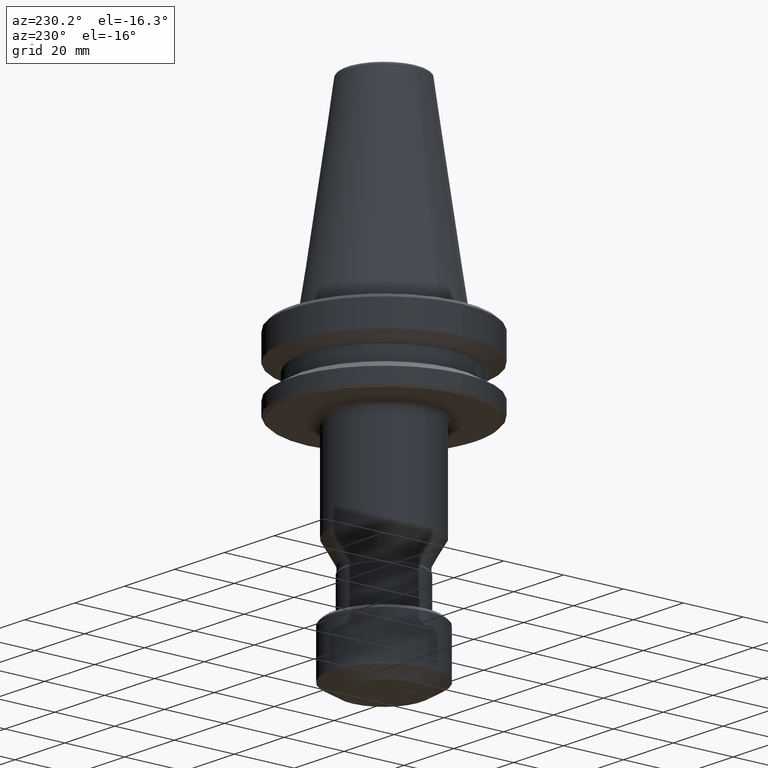
[diagram: clean part render]
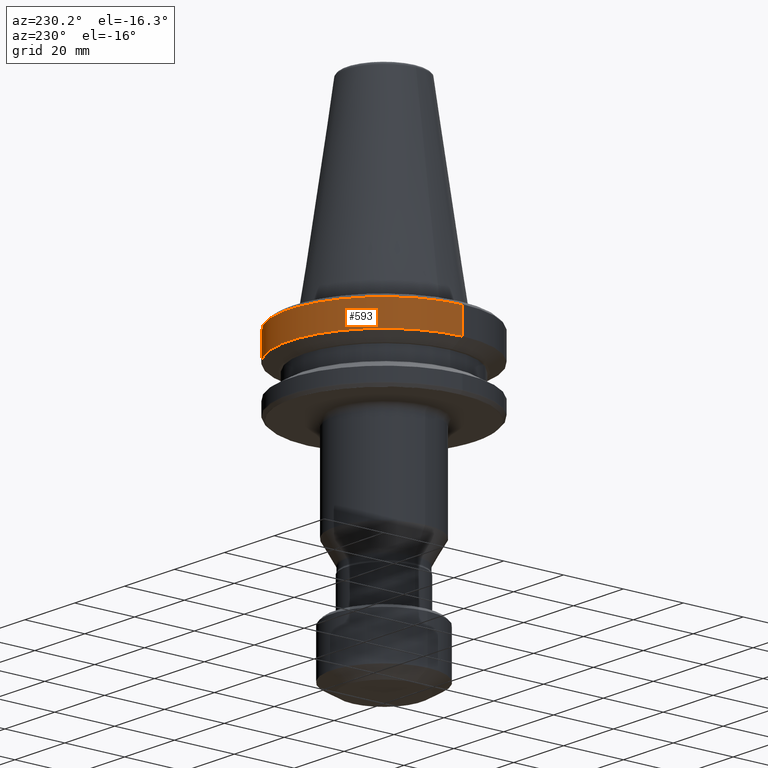
[diagram: same view with one face highlighted and labeled with its STEP entity id]
A machine part, auxiliary view. The second image highlights one B-rep face of the part: STEP entity #593.
In plain terms, the highlighted cylindrical surface (partial cylindrical patch) has radius 31.5 mm, axis along (-0, -0, 1).
Its self-contained STEP definition (entity closure, byte-faithful):
#9 = CIRCLE ( 'NONE', #748, 31.49999999999999300 ) ;
#13 = EDGE_LOOP ( 'NONE', ( #633, #634, #638, #646 ) ) ;
#21 = EDGE_CURVE ( 'NONE', #803, #662, #550, .T. ) ;
#89 = VECTOR ( 'NONE', #1099, 1000.000000000000000 ) ;
#99 = LINE ( 'NONE', #533, #89 ) ;
#150 = LINE ( 'NONE', #1486, #152 ) ;
#152 = VECTOR ( 'NONE', #1388, 1000.000000000000000 ) ;
#281 = CARTESIAN_POINT ( 'NONE',  ( 31.49999999999999300, 0.0000000000000000000, -3.165685424949243700 ) ) ;
#344 = FACE_OUTER_BOUND ( 'NONE', #13, .T. ) ;
#352 = CYLINDRICAL_SURFACE ( 'NONE', #792, 31.50000000000000000 ) ;
#533 = CARTESIAN_POINT ( 'NONE',  ( 31.50000000000000000, 0.0000000000000000000, 69.75694866325665100 ) ) ;
#550 = CIRCLE ( 'NONE', #1593, 31.50000000000000000 ) ;
#593 = ADVANCED_FACE ( 'NONE', ( #344 ), #352, .T. ) ;
#633 = ORIENTED_EDGE ( 'NONE', *, *, #21, .T. ) ;
#634 = ORIENTED_EDGE ( 'NONE', *, *, #1128, .T. ) ;
#638 = ORIENTED_EDGE ( 'NONE', *, *, #1403, .F. ) ;
#646 = ORIENTED_EDGE ( 'NONE', *, *, #1251, .F. ) ;
#662 = VERTEX_POINT ( 'NONE', #873 ) ;
#712 = VERTEX_POINT ( 'NONE', #281 ) ;
#748 = AXIS2_PLACEMENT_3D ( 'NONE', #830, #1596, #970 ) ;
#785 = DIRECTION ( 'NONE',  ( 1.000000000000000000, 0.0000000000000000000, 0.0000000000000000000 ) ) ;
#792 = AXIS2_PLACEMENT_3D ( 'NONE', #1153, #852, #785 ) ;
#803 = VERTEX_POINT ( 'NONE', #1461 ) ;
#830 = CARTESIAN_POINT ( 'NONE',  ( 0.0000000000000000000, 0.0000000000000000000, -3.165685424949243700 ) ) ;
#852 = DIRECTION ( 'NONE',  ( -0.0000000000000000000, -0.0000000000000000000, 1.000000000000000000 ) ) ;
#873 = CARTESIAN_POINT ( 'NONE',  ( -31.50000000000000000, 3.857637417314162700E-015, -11.59985799368323700 ) ) ;
#970 = DIRECTION ( 'NONE',  ( 1.000000000000000000, 0.0000000000000000000, 0.0000000000000000000 ) ) ;
#1099 = DIRECTION ( 'NONE',  ( -0.0000000000000000000, -0.0000000000000000000, 1.000000000000000000 ) ) ;
#1128 = EDGE_CURVE ( 'NONE', #662, #1511, #150, .T. ) ;
#1153 = CARTESIAN_POINT ( 'NONE',  ( 0.0000000000000000000, 0.0000000000000000000, 69.75694866325665100 ) ) ;
#1251 = EDGE_CURVE ( 'NONE', #803, #712, #99, .T. ) ;
#1314 = CARTESIAN_POINT ( 'NONE',  ( -31.49999999999999300, 3.857637417314161900E-015, -3.165685424949243700 ) ) ;
#1388 = DIRECTION ( 'NONE',  ( -0.0000000000000000000, -0.0000000000000000000, 1.000000000000000000 ) ) ;
#1403 = EDGE_CURVE ( 'NONE', #712, #1511, #9, .T. ) ;
#1461 = CARTESIAN_POINT ( 'NONE',  ( 31.50000000000000000, 0.0000000000000000000, -11.59985799368323700 ) ) ;
#1486 = CARTESIAN_POINT ( 'NONE',  ( -31.50000000000000000, 3.857637417314162700E-015, 69.75694866325665100 ) ) ;
#1511 = VERTEX_POINT ( 'NONE', #1314 ) ;
#1593 = AXIS2_PLACEMENT_3D ( 'NONE', #1628, #1621, #1627 ) ;
#1596 = DIRECTION ( 'NONE',  ( -0.0000000000000000000, -0.0000000000000000000, 1.000000000000000000 ) ) ;
#1621 = DIRECTION ( 'NONE',  ( -0.0000000000000000000, -0.0000000000000000000, 1.000000000000000000 ) ) ;
#1627 = DIRECTION ( 'NONE',  ( 1.000000000000000000, 0.0000000000000000000, 0.0000000000000000000 ) ) ;
#1628 = CARTESIAN_POINT ( 'NONE',  ( 0.0000000000000000000, 0.0000000000000000000, -11.59985799368323700 ) ) ;